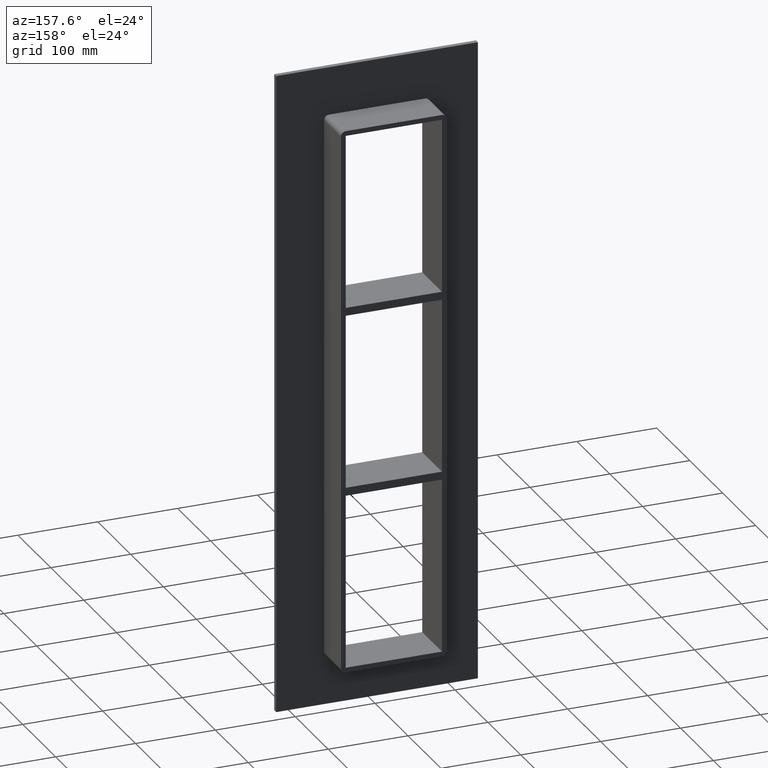
[diagram: clean part render]
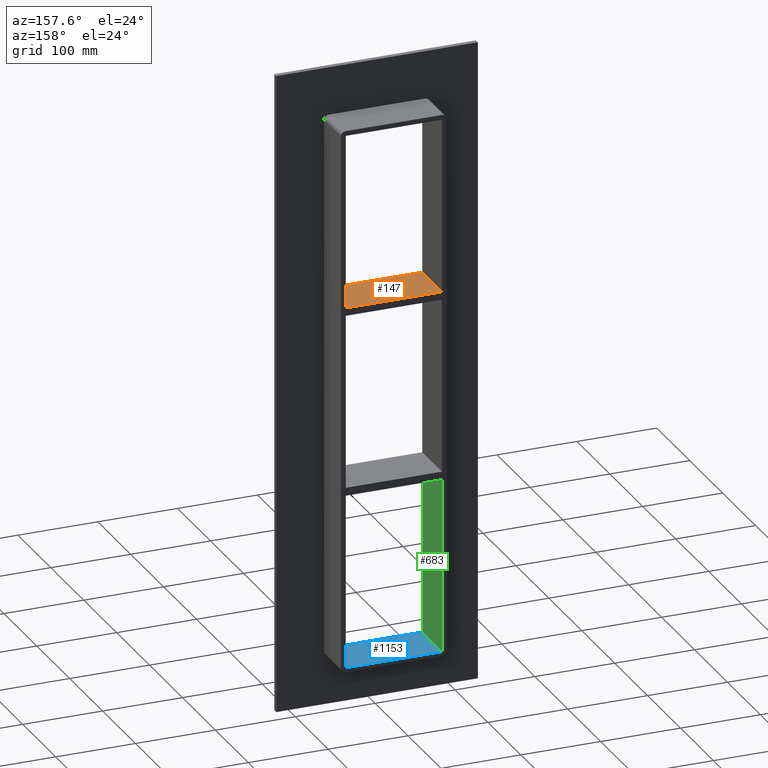
[diagram: same view with three faces highlighted in distinct colors, each labeled with its STEP entity id]
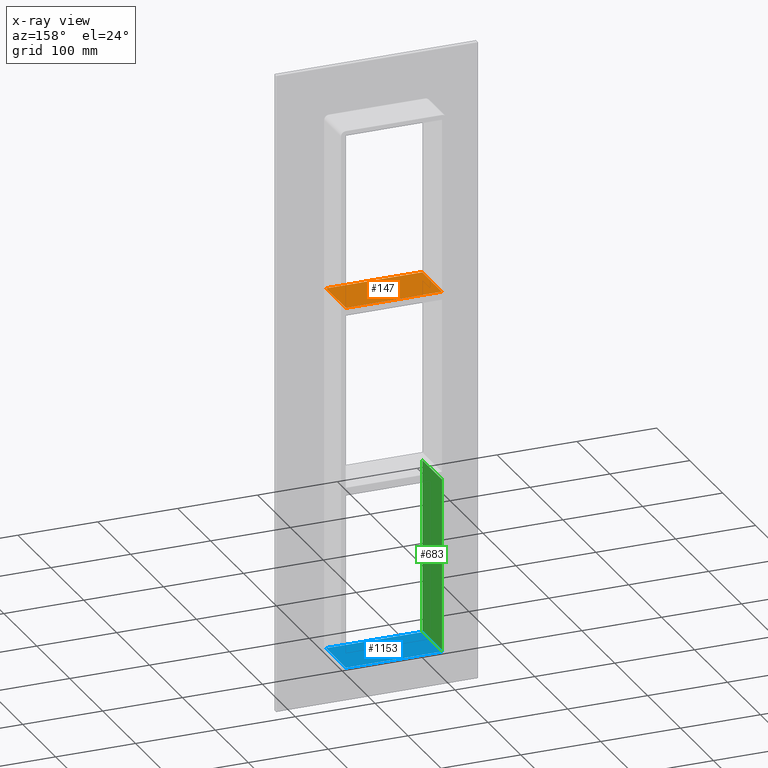
[diagram: x-ray of the same camera — body ghosted, the three highlighted faces saturated]
A machine part, auxiliary view with three faces highlighted in distinct colors.
The next image is the same camera in x-ray (body ghosted, the three faces saturated) — at least one of them is partly hidden behind the body in this view.
Their STEP definitions:

[orange] entity #147 — the highlighted planar face has unit normal (0, 0, 1).
#108=CARTESIAN_POINT('',(-60.249999999999666,-3.0,118.99999999999994));
#109=DIRECTION('',(0.0,0.0,1.0));
#110=DIRECTION('',(1.0,0.0,0.0));
#111=AXIS2_PLACEMENT_3D('',#108,#109,#110);
#112=PLANE('',#111);
#113=CARTESIAN_POINT('',(-60.249999999999666,-3.0,118.99999999999994));
#114=VERTEX_POINT('',#113);
#115=CARTESIAN_POINT('',(60.249999999999886,-3.0,118.99999999999994));
#116=VERTEX_POINT('',#115);
#117=CARTESIAN_POINT('',(-60.249999999999666,-3.0,118.99999999999994));
#118=DIRECTION('',(1.0,0.0,0.0));
#119=VECTOR('',#118,120.49999999999955);
#120=LINE('',#117,#119);
#121=EDGE_CURVE('',#114,#116,#120,.T.);
#122=ORIENTED_EDGE('',*,*,#121,.T.);
#123=CARTESIAN_POINT('',(60.249999999999879,57.0,118.99999999999994));
#124=VERTEX_POINT('',#123);
#125=CARTESIAN_POINT('',(60.249999999999986,57.000000000000007,118.99999999999993));
#126=DIRECTION('',(0.0,-1.0,0.0));
#127=VECTOR('',#126,60.000000000000007);
#128=LINE('',#125,#127);
#129=EDGE_CURVE('',#124,#116,#128,.T.);
#130=ORIENTED_EDGE('',*,*,#129,.F.);
#131=CARTESIAN_POINT('',(-60.249999999999666,57.0,118.99999999999994));
#132=VERTEX_POINT('',#131);
#133=CARTESIAN_POINT('',(-60.249999999999666,57.0,118.99999999999994));
#134=DIRECTION('',(1.0,0.0,0.0));
#135=VECTOR('',#134,120.49999999999955);
#136=LINE('',#133,#135);
#137=EDGE_CURVE('',#132,#124,#136,.T.);
#138=ORIENTED_EDGE('',*,*,#137,.F.);
#139=CARTESIAN_POINT('',(-60.249999999999993,-3.0,118.99999999999993));
#140=DIRECTION('',(0.0,1.0,0.0));
#141=VECTOR('',#140,60.000000000000007);
#142=LINE('',#139,#141);
#143=EDGE_CURVE('',#114,#132,#142,.T.);
#144=ORIENTED_EDGE('',*,*,#143,.F.);
#145=EDGE_LOOP('',(#122,#130,#138,#144));
#146=FACE_OUTER_BOUND('',#145,.T.);
#147=ADVANCED_FACE('',(#146),#112,.T.);

[blue] entity #1153 — the highlighted planar face has unit normal (0, 0, -1).
#340=CARTESIAN_POINT('',(60.249999999999986,57.0,-337.0));
#341=VERTEX_POINT('',#340);
#348=CARTESIAN_POINT('',(60.249999999999986,-3.0,-337.0));
#349=VERTEX_POINT('',#348);
#350=CARTESIAN_POINT('',(60.249999999999986,56.999999999999993,-337.0));
#351=DIRECTION('',(0.0,-1.0,0.0));
#352=VECTOR('',#351,59.999999999999993);
#353=LINE('',#350,#352);
#354=EDGE_CURVE('',#341,#349,#353,.T.);
#659=CARTESIAN_POINT('',(-60.249999999999986,-3.0,-337.0));
#660=VERTEX_POINT('',#659);
#667=CARTESIAN_POINT('',(-60.249999999999986,57.0,-337.0));
#668=VERTEX_POINT('',#667);
#669=CARTESIAN_POINT('',(-60.249999999999993,-3.0,-337.0));
#670=DIRECTION('',(0.0,1.0,0.0));
#671=VECTOR('',#670,60.0);
#672=LINE('',#669,#671);
#673=EDGE_CURVE('',#660,#668,#672,.T.);
#1019=CARTESIAN_POINT('',(60.249999999999986,-3.0,-337.0));
#1020=DIRECTION('',(-1.0,0.0,0.0));
#1021=VECTOR('',#1020,120.49999999999996);
#1022=LINE('',#1019,#1021);
#1023=EDGE_CURVE('',#349,#660,#1022,.T.);
#1137=CARTESIAN_POINT('',(60.249999999999986,0.0,-337.0));
#1138=DIRECTION('',(0.0,0.0,-1.0));
#1139=DIRECTION('',(-1.0,0.0,0.0));
#1140=AXIS2_PLACEMENT_3D('',#1137,#1138,#1139);
#1141=PLANE('',#1140);
#1142=ORIENTED_EDGE('',*,*,#673,.F.);
#1143=ORIENTED_EDGE('',*,*,#1023,.F.);
#1144=ORIENTED_EDGE('',*,*,#354,.F.);
#1145=CARTESIAN_POINT('',(-60.249999999999972,57.0,-337.0));
#1146=DIRECTION('',(1.0,0.0,0.0));
#1147=VECTOR('',#1146,120.49999999999996);
#1148=LINE('',#1145,#1147);
#1149=EDGE_CURVE('',#668,#341,#1148,.T.);
#1150=ORIENTED_EDGE('',*,*,#1149,.F.);
#1151=EDGE_LOOP('',(#1142,#1143,#1144,#1150));
#1152=FACE_OUTER_BOUND('',#1151,.T.);
#1153=ADVANCED_FACE('',(#1152),#1141,.F.);

[green] entity #683 — the highlighted planar face has unit normal (-1, 0, 0).
#248=CARTESIAN_POINT('',(-60.249999999999666,-3.0,-119.00000000000944));
#249=VERTEX_POINT('',#248);
#256=CARTESIAN_POINT('',(-60.249999999999666,57.0,-119.00000000000944));
#257=VERTEX_POINT('',#256);
#258=CARTESIAN_POINT('',(-60.249999999999993,57.000000000000007,-119.00000000000944));
#259=DIRECTION('',(0.0,-1.0,0.0));
#260=VECTOR('',#259,60.000000000000007);
#261=LINE('',#258,#260);
#262=EDGE_CURVE('',#257,#249,#261,.T.);
#653=CARTESIAN_POINT('',(-60.249999999999993,0.0,-337.0));
#654=DIRECTION('',(-1.0,0.0,0.0));
#655=DIRECTION('',(0.0,0.0,1.0));
#656=AXIS2_PLACEMENT_3D('',#653,#654,#655);
#657=PLANE('',#656);
#658=ORIENTED_EDGE('',*,*,#262,.T.);
#659=CARTESIAN_POINT('',(-60.249999999999986,-3.0,-337.0));
#660=VERTEX_POINT('',#659);
#661=CARTESIAN_POINT('',(-60.249999999999993,-3.0,-337.0));
#662=DIRECTION('',(0.0,0.0,1.0));
#663=VECTOR('',#662,217.99999999999056);
#664=LINE('',#661,#663);
#665=EDGE_CURVE('',#660,#249,#664,.T.);
#666=ORIENTED_EDGE('',*,*,#665,.F.);
#667=CARTESIAN_POINT('',(-60.249999999999986,57.0,-337.0));
#668=VERTEX_POINT('',#667);
#669=CARTESIAN_POINT('',(-60.249999999999993,-3.0,-337.0));
#670=DIRECTION('',(0.0,1.0,0.0));
#671=VECTOR('',#670,60.0);
#672=LINE('',#669,#671);
#673=EDGE_CURVE('',#660,#668,#672,.T.);
#674=ORIENTED_EDGE('',*,*,#673,.T.);
#675=CARTESIAN_POINT('',(-60.249999999999993,57.0,-119.00000000000944));
#676=DIRECTION('',(0.0,0.0,-1.0));
#677=VECTOR('',#676,217.99999999999056);
#678=LINE('',#675,#677);
#679=EDGE_CURVE('',#257,#668,#678,.T.);
#680=ORIENTED_EDGE('',*,*,#679,.F.);
#681=EDGE_LOOP('',(#658,#666,#674,#680));
#682=FACE_OUTER_BOUND('',#681,.T.);
#683=ADVANCED_FACE('',(#682),#657,.F.);